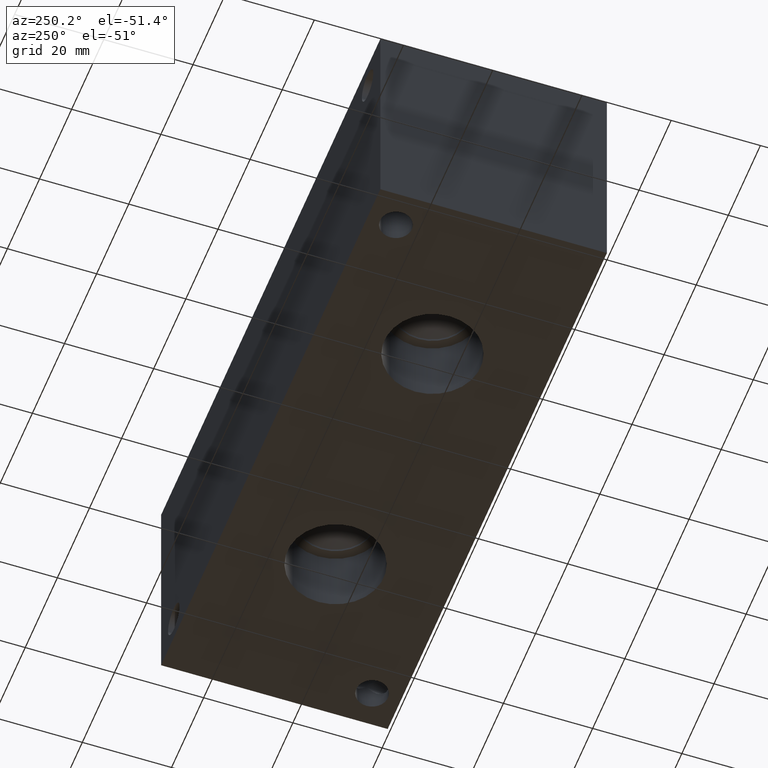
[diagram: clean part render]
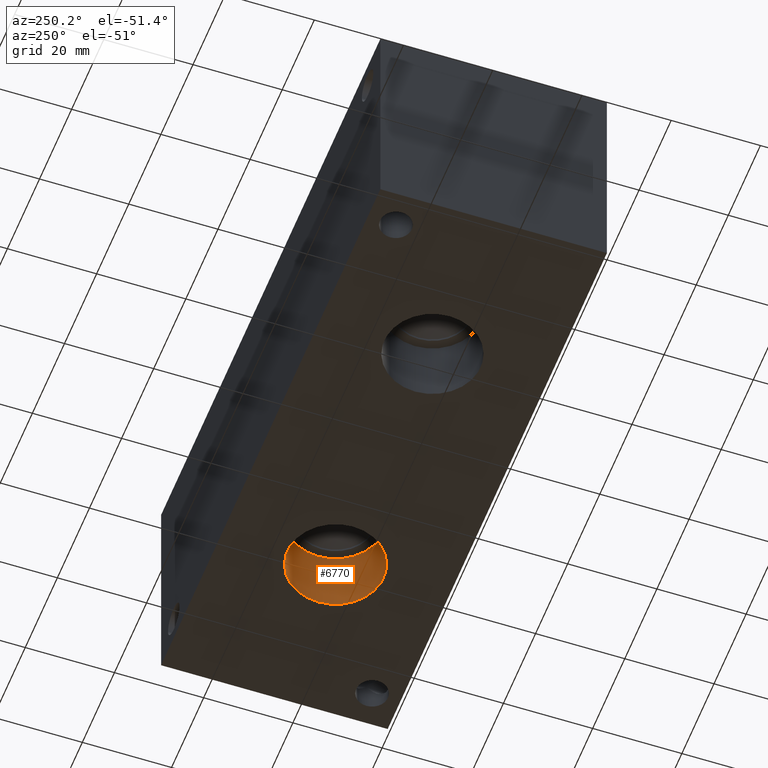
[diagram: same view with one face highlighted and labeled with its STEP entity id]
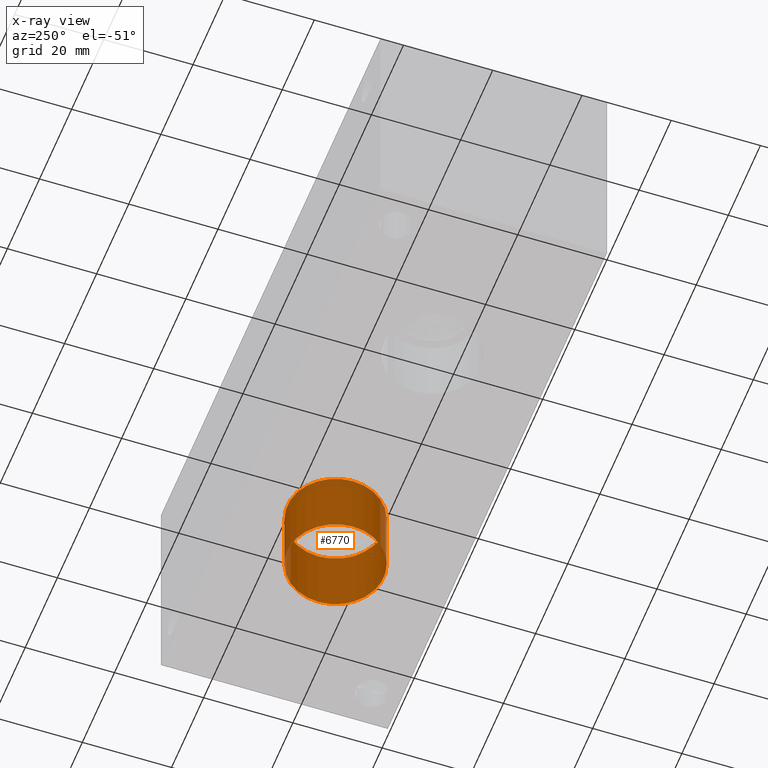
[diagram: x-ray of the same camera — body ghosted, the highlighted face saturated]
A machine part, auxiliary view. The second image highlights one B-rep face of the part: STEP entity #6770.
The next image is the same camera in x-ray: the body ghosted, the highlighted face saturated — about 8% of this face is hidden behind the body in this view.
In plain terms, the highlighted cylindrical surface (bore or boss wall) has radius 10.795 mm, axis along (0, 0, -1).
Its self-contained STEP definition (entity closure, byte-faithful):
#21=ELLIPSE('',#7047,15.2664354058176,10.795);
#34=CYLINDRICAL_SURFACE('',#7043,10.795);
#67=CIRCLE('',#7044,10.795);
#68=CIRCLE('',#7045,10.795);
#69=CIRCLE('',#7046,10.795);
#70=CIRCLE('',#7048,10.795);
#680=FACE_OUTER_BOUND('',#1054,.T.);
#1054=EDGE_LOOP('',(#5879,#5880,#5881,#5882,#5883,#5884,#5885));
#1740=LINE('',#11432,#2411);
#2411=VECTOR('',#8224,10.795);
#3212=VERTEX_POINT('',#11427);
#3213=VERTEX_POINT('',#11428);
#3214=VERTEX_POINT('',#11431);
#3215=VERTEX_POINT('',#11433);
#3216=VERTEX_POINT('',#11435);
#4114=EDGE_CURVE('',#3212,#3213,#67,.T.);
#4115=EDGE_CURVE('',#3213,#3212,#68,.T.);
#4116=EDGE_CURVE('',#3213,#3214,#1740,.T.);
#4117=EDGE_CURVE('',#3215,#3214,#69,.T.);
#4118=EDGE_CURVE('',#3216,#3215,#21,.T.);
#4119=EDGE_CURVE('',#3214,#3216,#70,.T.);
#5879=ORIENTED_EDGE('',*,*,#4114,.F.);
#5880=ORIENTED_EDGE('',*,*,#4115,.F.);
#5881=ORIENTED_EDGE('',*,*,#4116,.T.);
#5882=ORIENTED_EDGE('',*,*,#4117,.F.);
#5883=ORIENTED_EDGE('',*,*,#4118,.F.);
#5884=ORIENTED_EDGE('',*,*,#4119,.F.);
#5885=ORIENTED_EDGE('',*,*,#4116,.F.);
#6770=ADVANCED_FACE('',(#680),#34,.F.);
#7043=AXIS2_PLACEMENT_3D('',#11426,#8218,#8219);
#7044=AXIS2_PLACEMENT_3D('',#11429,#8220,#8221);
#7045=AXIS2_PLACEMENT_3D('',#11430,#8222,#8223);
#7046=AXIS2_PLACEMENT_3D('',#11434,#8225,#8226);
#7047=AXIS2_PLACEMENT_3D('',#11436,#8227,#8228);
#7048=AXIS2_PLACEMENT_3D('',#11437,#8229,#8230);
#8218=DIRECTION('center_axis',(0.,0.,-1.));
#8219=DIRECTION('ref_axis',(1.,0.,0.));
#8220=DIRECTION('center_axis',(0.,0.,1.));
#8221=DIRECTION('ref_axis',(1.,0.,0.));
#8222=DIRECTION('center_axis',(0.,0.,1.));
#8223=DIRECTION('ref_axis',(1.,0.,0.));
#8224=DIRECTION('',(0.,0.,1.));
#8225=DIRECTION('center_axis',(0.,0.,-1.));
#8226=DIRECTION('ref_axis',(1.,0.,0.));
#8227=DIRECTION('center_axis',(0.,0.707106781186548,-0.707106781186548));
#8228=DIRECTION('ref_axis',(0.,-0.707106781186547,-0.707106781186547));
#8229=DIRECTION('center_axis',(0.,0.,-1.));
#8230=DIRECTION('ref_axis',(1.,0.,0.));
#11426=CARTESIAN_POINT('Origin',(98.425,25.4,7.6835));
#11427=CARTESIAN_POINT('',(109.22,25.4,0.));
#11428=CARTESIAN_POINT('',(87.63,25.4,0.));
#11429=CARTESIAN_POINT('Origin',(98.425,25.4,0.));
#11430=CARTESIAN_POINT('Origin',(98.425,25.4,0.));
#11431=CARTESIAN_POINT('',(87.63,25.4,15.367));
#11432=CARTESIAN_POINT('',(87.63,25.4,7.6835));
#11433=CARTESIAN_POINT('',(94.441165666095,15.367,15.367));
#11434=CARTESIAN_POINT('Origin',(98.425,25.4,15.367));
#11435=CARTESIAN_POINT('',(102.408834333905,15.367,15.367));
#11436=CARTESIAN_POINT('Origin',(98.425,25.4,25.4));
#11437=CARTESIAN_POINT('Origin',(98.425,25.4,15.367));